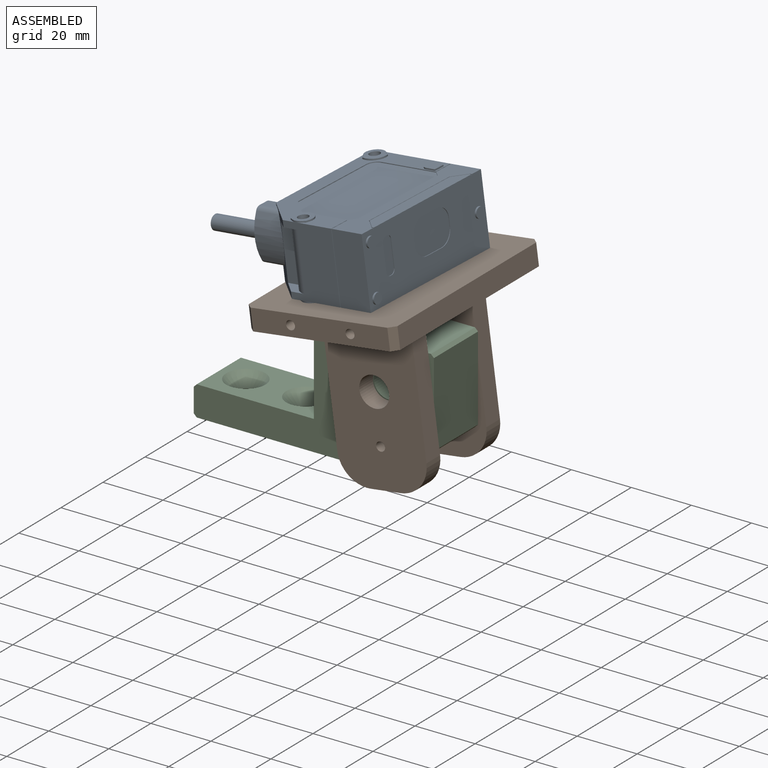
[diagram: assembled view]
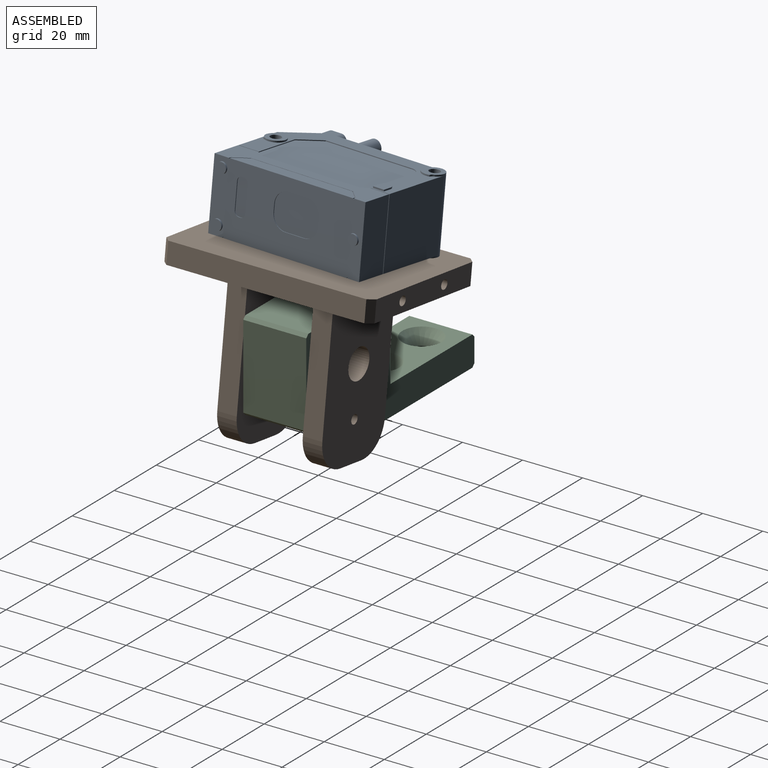
[diagram: assembled view, second angle]
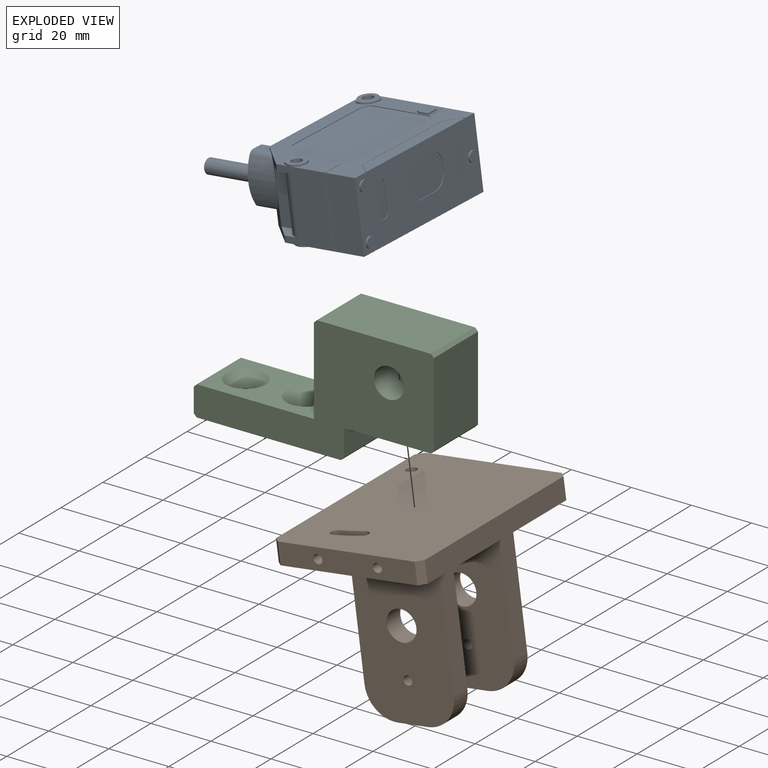
[diagram: exploded view]
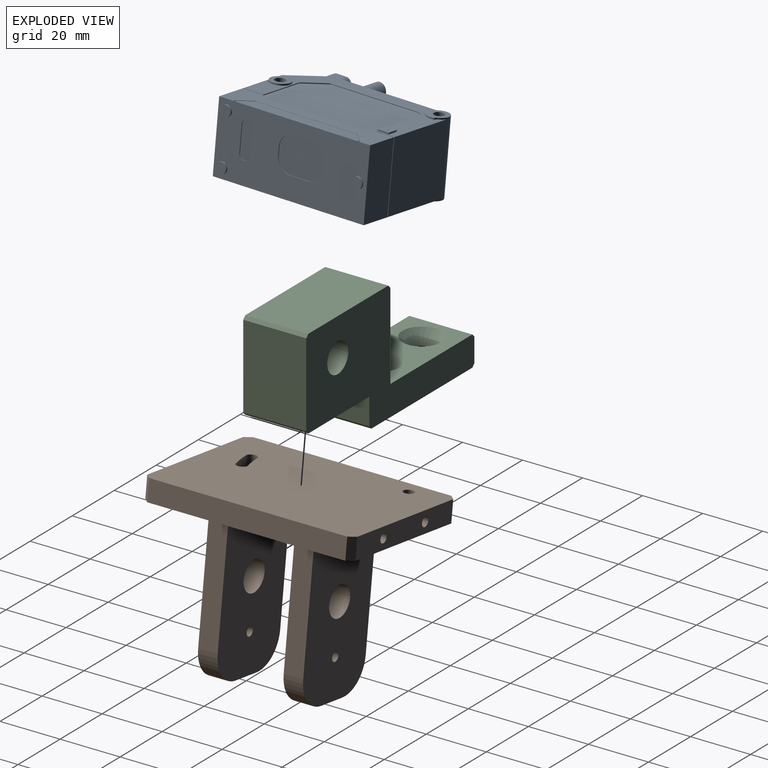
[diagram: exploded view, second angle]
ASSEMBLY  parts=3 mates=3
PART A: 140 faces, bbox 24.1x52.5x60.5 mm
  f0: cylinder r=1.75mm len=3.5mm, axis (0,0,-1), area 6.6mm2, adj f14,f45
  f1: cylinder r=1.75mm len=3.5mm, axis (0,0,-1), area 6.6mm2, adj f14,f46
  f2: cylinder r=1.75mm len=3.5mm, axis (0,0,-1), area 6.6mm2, adj f14,f47
  f3: cylinder r=2.4mm len=17.7mm, axis (0,0,-1), area 266.9mm2, adj f64,f75
  f4: cylinder r=3.3mm len=18.43mm, axis (1,0,0), area 43.6mm2, adj f74,f86,f87,f88
  f5: cylinder r=1.75mm len=24.1mm, axis (1,0,0), area 265mm2, adj f81,f92
  f6: cylinder r=15mm len=14.54mm, axis (0,0,-1), area 65.3mm2, adj f75,f82,f83,f99
  f7: cylinder r=3.9mm len=5.43mm, axis (-1,0,0), area 4.4mm2, adj f81,f101,f102,f134
  f8: cylinder r=3.2mm len=24.1mm, axis (1,0,0), area 127.3mm2, adj f13,f81,f92,f93,f97,f99,f100,f103
  f9: cylinder r=3.3mm len=6.6mm, axis (-1,0,0), area 6.7mm2, adj f118,f120,f121,f134
  f10: cylinder r=1.75mm len=24.1mm, axis (1,0,0), area 265mm2, adj f118,f124
  f11: cylinder r=3.3mm len=6.6mm, axis (1,0,0), area 6.7mm2, adj f13,f124,f126,f127
  f12: cylinder r=1.9mm len=3.79mm, axis (1,0,0), area 3mm2, adj f13,f130,f131,f133
  f13: plane 52.5x27.2mm, normal (-1,0,0), area 448.9mm2, adj f8,f11,f12,f93,f94,f95,f96,f97
  f14: plane 52.5x23.1mm, normal (0,0,1), area 982.5mm2, adj f0,f1,f2,f15,f16,f17,f18,f19
  f15: plane 2.6x0.25mm, normal (0,1,0), area 0.7mm2, adj f14,f16,f22,f48
  f16: cylinder r=4.5mm len=4.5mm, axis (0,0,1), area 1.8mm2, adj f14,f15,f17,f48
  f17: plane 6.4x0.25mm, normal (-1,0,0), area 1.6mm2, adj f14,f16,f18,f48
  f18: cylinder r=4.5mm len=4.5mm, axis (0,0,1), area 1.8mm2, adj f14,f17,f19,f48
  f19: plane 2.6x0.25mm, normal (0,-1,0), area 0.7mm2, adj f14,f18,f20,f48
  f20: cylinder r=4.5mm len=4.5mm, axis (0,0,1), area 1.8mm2, adj f14,f19,f21,f48
  f21: plane 6.4x0.25mm, normal (1,0,0), area 1.6mm2, adj f14,f20,f22,f48
  f22: cylinder r=4.5mm len=4.5mm, axis (0,0,1), area 1.8mm2, adj f14,f15,f21,f48
  f23: plane 8.6x0.25mm, normal (0,-1,0), area 2.1mm2, adj f14,f24,f30,f49
  f24: cylinder r=1.5mm len=1.5mm, axis (0,0,1), area 0.6mm2, adj f14,f23,f25,f49
  f25: plane 0.6x0.25mm, normal (1,0,0), area 0.1mm2, adj f14,f24,f26,f49
  f26: cylinder r=1.5mm len=1.5mm, axis (0,0,1), area 0.6mm2, adj f14,f25,f27,f49
  f27: plane 8.6x0.25mm, normal (0,1,0), area 2.1mm2, adj f14,f26,f28,f49
  f28: cylinder r=1.5mm len=1.5mm, axis (0,0,1), area 0.6mm2, adj f14,f27,f29,f49
  f29: plane 0.6x0.25mm, normal (-1,0,0), area 0.1mm2, adj f14,f28,f30,f49
  f30: cylinder r=1.5mm len=1.5mm, axis (0,0,1), area 0.6mm2, adj f14,f23,f29,f49
  f31: plane 0.65x0.25mm, normal (0,-1,0), area 0.2mm2, adj f14,f32,f52,f62
  f32: plane 52.5x10.5mm, normal (-1,0,0), area 291mm2, adj f14,f31,f33,f40,f41,f50,f51,f52
  f33: plane 23.1x10.5mm, normal (0,1,0), area 242.6mm2, adj f14,f32,f34,f68
  f34: plane 52.5x10.5mm, normal (1,0,0), area 291mm2, adj f14,f33,f35,f39,f40,f53,f54,f55
  f35: plane 0.65x0.25mm, normal (0,-1,0), area 0.2mm2, adj f14,f34,f55,f63
  f36: plane 0.65x0.25mm, normal (0,1,0), area 0.2mm2, adj f14,f37,f56,f63
  f37: plane 42.9x4.5mm, normal (1,0,0), area 178.2mm2, adj f14,f36,f38,f56,f57,f58
  f38: plane 0.65x0.25mm, normal (0,-1,0), area 0.2mm2, adj f14,f37,f58,f63
  f39: plane 0.65x0.25mm, normal (0,1,0), area 0.2mm2, adj f14,f34,f53,f63
  f40: plane 23.1x10.5mm, normal (0,-1,0), area 242.6mm2, adj f14,f32,f34,f72
  f41: plane 0.65x0.25mm, normal (0,1,0), area 0.2mm2, adj f14,f32,f50,f62
  f42: plane 0.65x0.25mm, normal (0,-1,0), area 0.2mm2, adj f14,f43,f61,f62
  f43: plane 42.9x4.5mm, normal (-1,0,0), area 178.2mm2, adj f14,f42,f44,f59,f60,f61
  f44: plane 0.65x0.25mm, normal (0,1,0), area 0.2mm2, adj f14,f43,f59,f62
  f45: plane 3.5x3.5mm, normal (0,0,1), area 9.6mm2, adj f0
  f46: plane 3.5x3.5mm, normal (0,0,1), area 9.6mm2, adj f1
  f47: plane 3.5x3.5mm, normal (0,0,1), area 9.6mm2, adj f2
  f48: plane 15.4x11.6mm, normal (0,0,1), area 161.3mm2, adj f15,f16,f17,f18,f19,f20,f21,f22
  f49: plane 11.6x3.6mm, normal (0,0,1), area 39.8mm2, adj f23,f24,f25,f26,f27,f28,f29,f30
  f50: plane 4x4mm, normal (0,0.71,0.71), area 1.4mm2, adj f32,f41,f51,f62
  f51: plane 35.5x0.25mm, normal (0,0,1), area 8.9mm2, adj f32,f50,f52,f62
  f52: plane 4x4mm, normal (0,-0.71,0.71), area 1.4mm2, adj f31,f32,f51,f62
  f53: plane 4x4mm, normal (0,0.71,0.71), area 1.4mm2, adj f34,f39,f54,f63
  f54: plane 35.5x0.25mm, normal (0,0,1), area 8.9mm2, adj f34,f53,f55,f63
  f55: plane 4x4mm, normal (0,-0.71,0.71), area 1.4mm2, adj f34,f35,f54,f63
  f56: plane 3.85x3.85mm, normal (0,0.71,-0.71), area 1.4mm2, adj f36,f37,f57,f63
  f57: plane 35.2x0.25mm, normal (0,0,-1), area 8.8mm2, adj f37,f56,f58,f63
  f58: plane 3.85x3.85mm, normal (0,-0.71,-0.71), area 1.4mm2, adj f37,f38,f57,f63
  f59: plane 3.85x3.85mm, normal (0,0.71,-0.71), area 1.4mm2, adj f43,f44,f60,f62
  f60: plane 35.2x0.25mm, normal (0,0,-1), area 8.8mm2, adj f43,f59,f61,f62
  f61: plane 3.85x3.85mm, normal (0,-0.71,-0.71), area 1.4mm2, adj f42,f43,f60,f62
  f62: plane 43.5x4.65mm, normal (-1,0,0), area 8mm2, adj f14,f31,f41,f42,f44,f50,f51,f52
  f63: plane 43.5x4.65mm, normal (1,0,0), area 8mm2, adj f14,f35,f36,f38,f39,f53,f54,f55
  f64: plane 4.8x4.8mm, normal (0,0,-1), area 18.1mm2, adj f3
  f65: plane 35x0.25mm, normal (0,0,-1), area 8.8mm2, adj f34,f66,f67,f78
  f66: plane 2x2mm, normal (0,-0.71,-0.71), area 0.7mm2, adj f34,f65,f68,f78
  f67: plane 2x2mm, normal (0,0.71,-0.71), area 0.7mm2, adj f34,f65,f72,f78
  f68: plane 23.1x6.5mm, normal (0,0,-1), area 8.9mm2, adj f32,f33,f34,f66,f69,f76,f78,f79
  f69: plane 2x2mm, normal (0,-0.71,-0.71), area 0.7mm2, adj f32,f68,f70,f79
  f70: plane 35x0.25mm, normal (0,0,-1), area 8.8mm2, adj f32,f69,f71,f79
  f71: plane 2x2mm, normal (0,0.71,-0.71), area 0.7mm2, adj f32,f70,f72,f79
  f72: plane 23.1x7mm, normal (0,0,-1), area 9.2mm2, adj f32,f34,f40,f67,f71,f77,f78,f79
  f73: cylinder r=4.4mm len=18.7mm, axis (1,0,0), area 20.4mm2, adj f74,f80,f86,f88
  f74: plane 18.59x0.75mm, normal (0,-0.34,-0.94), area 14.7mm2, adj f4,f73,f86,f88
  f75: plane 16.6x10.4mm, normal (0,0,-1), area 127mm2, adj f3,f6,f82,f83,f84,f85,f89,f90
  f76: plane 22.6x0.2mm, normal (0,1,0), area 4.5mm2, adj f68,f78,f79,f117
  f77: plane 22.6x0.2mm, normal (0,-1,0), area 4.5mm2, adj f72,f78,f79,f111
  f78: plane 52x24.2mm, normal (1,0,0), area 922.5mm2, adj f65,f66,f67,f68,f72,f76,f77,f111
  f79: plane 52x24.2mm, normal (-1,0,0), area 922.5mm2, adj f68,f69,f70,f71,f72,f76,f77,f106
  f80: cylinder r=3.32mm len=18.8mm, axis (1,0,0), area 34.5mm2, adj f73,f86,f88,f104
  f81: plane 7.1x7.1mm, normal (1,0,0), area 28.5mm2, adj f5,f7,f8,f100,f101,f102,f103
  f82: cylinder r=2mm len=4.3mm, axis (0,0,-1), area 9.2mm2, adj f6,f75,f85,f99
  f83: cylinder r=2mm len=4.3mm, axis (0,0,-1), area 9.2mm2, adj f6,f75,f89,f99
  f84: cylinder r=2mm len=8.04mm, axis (0,0,-1), area 15.4mm2, adj f75,f85,f91,f98
  f85: plane 6.22x3.14mm, normal (-1,0,0), area 15.3mm2, adj f75,f82,f84,f98,f99
  f86: plane 9x4.11mm, normal (0.99,-0.1,0), area 16.8mm2, adj f4,f73,f74,f80,f87,f98,f104
  f87: plane 17.94x5.82mm, normal (0,-1,0), area 104.4mm2, adj f4,f86,f88,f98
  f88: plane 9x4.11mm, normal (-0.99,-0.1,0), area 16.8mm2, adj f4,f73,f74,f80,f87,f98,f104
  f89: plane 6.22x3.14mm, normal (1,0,0), area 15.3mm2, adj f75,f83,f90,f98,f99
  f90: cylinder r=2mm len=8.04mm, axis (0,0,-1), area 15.4mm2, adj f75,f89,f91,f98
  f91: cylinder r=15mm len=14.54mm, axis (0,0,-1), area 141.8mm2, adj f75,f84,f90,f98
  f92: plane 7.1x7.1mm, normal (-1,0,0), area 28.5mm2, adj f5,f8,f93,f94,f95,f96,f97
  f93: cylinder r=1mm len=0.61mm, axis (1,0,0), area 0.4mm2, adj f8,f13,f92,f94
  f94: cylinder r=3.72mm len=0.5mm, axis (1,0,0), area 0.2mm2, adj f13,f92,f93,f95
  f95: cylinder r=3.9mm len=5.43mm, axis (1,0,0), area 4.4mm2, adj f13,f92,f94,f96
  f96: cylinder r=3.72mm len=0.5mm, axis (1,0,0), area 0.2mm2, adj f13,f92,f95,f97
  f97: cylinder r=1mm len=0.56mm, axis (1,0,0), area 0.4mm2, adj f8,f13,f92,f96
  f98: plane 23.1x10.18mm, normal (0,-0.72,-0.69), area 105.9mm2, adj f13,f84,f85,f86,f87,f88,f89,f90
  f99: plane 39.53x23.1mm, normal (0,0,-1), area 845.1mm2, adj f6,f8,f13,f82,f83,f85,f89,f98
  f100: cylinder r=1mm len=0.61mm, axis (-1,0,0), area 0.4mm2, adj f8,f81,f101,f134
  f101: cylinder r=3.72mm len=0.5mm, axis (-1,0,0), area 0.2mm2, adj f7,f81,f100,f134
  f102: cylinder r=3.72mm len=0.5mm, axis (-1,0,0), area 0.2mm2, adj f7,f81,f103,f134
  f103: cylinder r=1mm len=0.56mm, axis (-1,0,0), area 0.4mm2, adj f8,f81,f102,f134
  f104: plane 23.1x17.02mm, normal (0,-1,0), area 304.4mm2, adj f13,f80,f86,f88,f98,f111,f134
  f105: plane 24x23.1mm, normal (0,1,0), area 554.4mm2, adj f8,f13,f117,f134
  f106: plane 19x0.25mm, normal (0,-1,0), area 4.8mm2, adj f13,f79,f107,f117
  f107: cylinder r=3mm len=3mm, axis (-1,0,0), area 1.2mm2, adj f13,f79,f106,f108
  f108: plane 30x0.25mm, normal (0,0,1), area 7.5mm2, adj f13,f79,f107,f109
  f109: plane 6x6mm, normal (0,0.71,0.71), area 2.1mm2, adj f13,f79,f108,f110
  f110: plane 16x0.25mm, normal (0,1,0), area 4mm2, adj f13,f79,f109,f111
  f111: plane 23.1x7mm, normal (0,0,1), area 9.2mm2, adj f13,f77,f78,f79,f104,f110,f112,f134
  f112: plane 16x0.25mm, normal (0,1,0), area 4mm2, adj f78,f111,f113,f134
  f113: plane 6x6mm, normal (0,0.71,0.71), area 2.1mm2, adj f78,f112,f114,f134
  f114: plane 30x0.25mm, normal (0,0,1), area 7.5mm2, adj f78,f113,f115,f134
  f115: cylinder r=3mm len=3mm, axis (1,0,0), area 1.2mm2, adj f78,f114,f116,f134
  f116: plane 19x0.25mm, normal (0,-1,0), area 4.8mm2, adj f78,f115,f117,f134
  f117: plane 23.1x6.5mm, normal (0,0,1), area 8.9mm2, adj f13,f76,f78,f79,f105,f106,f116,f134
  f118: plane 6.6x6.5mm, normal (1,0,0), area 24.3mm2, adj f9,f10,f119,f120,f121,f122,f123
  f119: cylinder r=4.4mm len=0.96mm, axis (-1,0,0), area 0.5mm2, adj f118,f120,f123,f134
  f120: plane 0.75x0.5mm, normal (0,-0.34,0.94), area 0.4mm2, adj f9,f118,f119,f134
  f121: plane 0.75x0.5mm, normal (0,-0.34,-0.94), area 0.4mm2, adj f9,f118,f122,f134
  f122: cylinder r=4.4mm len=0.96mm, axis (-1,0,0), area 0.5mm2, adj f118,f121,f123,f134
  f123: cylinder r=3.32mm len=3.49mm, axis (-1,0,0), area 1.8mm2, adj f118,f119,f122,f134
  f124: plane 6.6x6.5mm, normal (-1,0,0), area 24.3mm2, adj f10,f11,f125,f126,f127,f128,f129
  f125: cylinder r=4.4mm len=0.96mm, axis (1,0,0), area 0.5mm2, adj f13,f124,f126,f129
  f126: plane 0.75x0.5mm, normal (0,-0.34,0.94), area 0.4mm2, adj f11,f13,f124,f125
  f127: plane 0.75x0.5mm, normal (0,-0.34,-0.94), area 0.4mm2, adj f11,f13,f124,f128
  f128: cylinder r=4.4mm len=0.96mm, axis (1,0,0), area 0.5mm2, adj f13,f124,f127,f129
  f129: cylinder r=3.32mm len=3.49mm, axis (1,0,0), area 1.8mm2, adj f13,f124,f125,f128
  f130: plane 4.89x3.79mm, normal (-1,0,0), area 17mm2, adj f12,f131,f132,f133
  f131: plane 3x0.5mm, normal (0,-1,0), area 1.5mm2, adj f12,f13,f130,f132
  f132: plane 3.79x0.5mm, normal (0,0,1), area 1.9mm2, adj f13,f130,f131,f133
  f133: plane 3x0.5mm, normal (0,1,0), area 1.5mm2, adj f12,f13,f130,f132
  f134: plane 52.5x27.2mm, normal (1,0,0), area 448.9mm2, adj f7,f8,f9,f98,f99,f100,f101,f102
  f135: plane 4.89x3.79mm, normal (1,0,0), area 17mm2, adj f136,f137,f138,f139
  f136: plane 3x0.5mm, normal (0,1,0), area 1.5mm2, adj f134,f135,f137,f139
  f137: cylinder r=1.9mm len=3.79mm, axis (-1,0,0), area 3mm2, adj f134,f135,f136,f138
  f138: plane 3x0.5mm, normal (0,-1,0), area 1.5mm2, adj f134,f135,f137,f139
  f139: plane 3.79x0.5mm, normal (0,0,1), area 1.9mm2, adj f134,f135,f136,f138
PART B: 43 faces, bbox 50x57x70 mm
  f0: plane 70x50mm, normal (0,-1,0), area 3054.7mm2, adj f2,f3,f4,f5,f6,f7,f8,f9
  f1: plane 70x50mm, normal (0,1,0), area 3444.7mm2, adj f2,f3,f4,f5,f6,f7,f22,f23
  f2: plane 46x7mm, normal (0,0,1), area 307.9mm2, adj f0,f1,f22,f23,f30,f32
  f3: plane 66x7mm, normal (-1,0,0), area 462mm2, adj f0,f1,f23,f24
  f4: plane 46x7mm, normal (0,0,-1), area 307.9mm2, adj f0,f1,f24,f25,f26,f28
  f5: plane 66x7mm, normal (1,0,0), area 462mm2, adj f0,f1,f22,f25
  f6: cylinder r=1.75mm len=7mm, axis (0,-1,0), area 4.8mm2, adj f0,f1,f36,f40
  f7: cylinder r=1.75mm len=7mm, axis (0,-1,0), area 77mm2, adj f0,f1
  f8: plane 40x6.5mm, normal (1,0,0), area 260mm2, adj f0,f9,f21,f42
  f9: plane 50x30mm, normal (0,0,1), area 1371.5mm2, adj f0,f8,f10,f11,f17,f20,f21,f35
  f10: plane 40x6.5mm, normal (-1,0,0), area 260mm2, adj f0,f9,f20,f42
  f11: plane 10x6.5mm, normal (0,-1,0), area 65mm2, adj f9,f20,f21,f42
  f12: plane 40x6.5mm, normal (1,0,0), area 260mm2, adj f0,f14,f19,f41
  f13: plane 40x6.5mm, normal (-1,0,0), area 260mm2, adj f0,f14,f18,f41
  f14: plane 50x30mm, normal (0,0,-1), area 1371.5mm2, adj f0,f12,f13,f15,f16,f18,f19,f34
  f15: plane 10x6.5mm, normal (0,-1,0), area 65mm2, adj f14,f18,f19,f41
  f16: cylinder r=5mm len=10mm, axis (0,0,1), area 204.2mm2, adj f14,f41
  f17: cylinder r=5mm len=10mm, axis (0,0,1), area 204.2mm2, adj f9,f42
  f18: cylinder r=10mm len=10mm, axis (0,0,1), area 102.1mm2, adj f13,f14,f15,f41
  f19: cylinder r=10mm len=10mm, axis (0,0,-1), area 102.1mm2, adj f12,f14,f15,f41
  f20: cylinder r=10mm len=10mm, axis (0,0,1), area 102.1mm2, adj f9,f10,f11,f42
  f21: cylinder r=10mm len=10mm, axis (0,0,-1), area 102.1mm2, adj f8,f9,f11,f42
  f22: plane 7x2mm, normal (0.71,0,0.71), area 19.8mm2, adj f0,f1,f2,f5
  f23: plane 7x2mm, normal (-0.71,0,0.71), area 19.8mm2, adj f0,f1,f2,f3
  f24: plane 7x2mm, normal (-0.71,0,-0.71), area 19.8mm2, adj f0,f1,f3,f4
  f25: plane 7x2mm, normal (0.71,0,-0.71), area 19.8mm2, adj f0,f1,f4,f5
  f26: cylinder r=1.5mm len=5mm, axis (0,0,-1), area 47.1mm2, adj f4,f27
  f27: plane 3x3mm, normal (0,0,-1), area 7.1mm2, adj f26
  f28: cylinder r=1.5mm len=5mm, axis (0,0,-1), area 47.1mm2, adj f4,f29
  f29: plane 3x3mm, normal (0,0,-1), area 7.1mm2, adj f28
  f30: cylinder r=1.5mm len=5mm, axis (0,0,1), area 47.1mm2, adj f2,f31
  f31: plane 3x3mm, normal (0,0,1), area 7.1mm2, adj f30
  f32: cylinder r=1.5mm len=5mm, axis (0,0,1), area 47.1mm2, adj f2,f33
  f33: plane 3x3mm, normal (0,0,1), area 7.1mm2, adj f32
  f34: cylinder r=1.5mm len=6.5mm, axis (0,0,1), area 61.3mm2, adj f14,f41
  f35: cylinder r=1.5mm len=6.5mm, axis (0,0,1), area 61.3mm2, adj f9,f42
  f36: cylinder r=45.75mm len=7mm, axis (0,1,0), area 24.6mm2, adj f0,f1,f6,f37
  f37: cylinder r=1.75mm len=7mm, axis (0,1,0), area 38.5mm2, adj f0,f1,f36,f38
  f38: cylinder r=49.25mm len=8.03mm, axis (0,1,0), area 58.1mm2, adj f0,f1,f37,f39
  f39: cylinder r=1.75mm len=7mm, axis (0,1,0), area 38.5mm2, adj f0,f1,f38,f40
  f40: cylinder r=45.75mm len=7mm, axis (0,1,0), area 24.6mm2, adj f0,f1,f6,f39
  f41: plane 50x30mm, normal (0,0,1), area 1371.5mm2, adj f0,f12,f13,f15,f16,f18,f19,f34
  f42: plane 50x30mm, normal (0,0,-1), area 1371.5mm2, adj f0,f8,f10,f11,f17,f20,f21,f35
PART C: 21 faces, bbox 80x21x40 mm
  f0: plane 28x21mm, normal (1,0,0), area 588mm2, adj f10,f11,f12,f13
  f1: plane 38x21mm, normal (0,0,1), area 798mm2, adj f11,f12,f13,f17
  f2: plane 21x8mm, normal (-1,0,0), area 168mm2, adj f12,f13,f16,f18
  f3: plane 48x21mm, normal (0,0,-1), area 968.7mm2, adj f8,f9,f12,f13,f15,f16
  f4: plane 21x9mm, normal (1,0,0), area 189mm2, adj f7,f12,f13,f15
  f5: plane 29x21mm, normal (-1,0,0), area 609mm2, adj f12,f13,f14,f17
  f6: cylinder r=5mm len=21mm, axis (0,-1,0), area 659.7mm2, adj f12,f13
  f7: plane 29x21mm, normal (0,0,-1), area 609mm2, adj f4,f10,f12,f13
  f8: cylinder r=2.5mm len=6mm, axis (0,0,1), area 94.2mm2, adj f3,f20
  f9: cylinder r=2.5mm len=6mm, axis (0,0,1), area 94.2mm2, adj f3,f19
  f10: plane 21x1mm, normal (0.71,0,-0.71), area 29.7mm2, adj f0,f7,f12,f13
  f11: plane 21x1mm, normal (0.71,0,0.71), area 29.7mm2, adj f0,f1,f12,f13
  f12: plane 80x40mm, normal (0,-1,0), area 1618.5mm2, adj f0,f1,f2,f3,f4,f5,f6,f7
  f13: plane 80x40mm, normal (0,1,0), area 1618.5mm2, adj f0,f1,f2,f3,f4,f5,f6,f7
  f14: plane 39x21mm, normal (0,0,1), area 553.5mm2, adj f5,f12,f13,f18,f19,f20
  f15: plane 21x1mm, normal (0.71,0,-0.71), area 29.7mm2, adj f3,f4,f12,f13
  f16: plane 21x1mm, normal (-0.71,0,-0.71), area 29.7mm2, adj f2,f3,f12,f13
  f17: plane 21x1mm, normal (-0.71,0,0.71), area 29.7mm2, adj f1,f5,f12,f13
  f18: plane 21x1mm, normal (-0.71,0,0.71), area 29.7mm2, adj f2,f12,f13,f14
  f19: cone r=2.5mm half-angle=45deg, axis (0,0,1), area 159.9mm2, adj f9,f14
  f20: cone r=2.5mm half-angle=45deg, axis (0,0,1), area 159.9mm2, adj f8,f14
PLACE A rot(axis=(0.03,1,-0.03),82.4deg) t=(36.03,13.83,71.84)mm
PLACE B rot(axis=(-0.05,0.71,0.71),174.6deg) t=(7.9,-21.2,52.34)mm
PLACE C t=(-6.53,23.8,7.07)mm fixed
MATE cylindrical B.f16 <-> C.f6  axis (0,-1,0) through (29.68,-4.67,29.08)mm
MATE planar A.f81 <-> B.f1  axis (0.13,0,-0.99) through (8.43,36.72,54.43)mm
MATE cylindrical A.f5 <-> B.f7  axis (-0.13,0,0.99) through (1.47,35.83,77.81)mm
